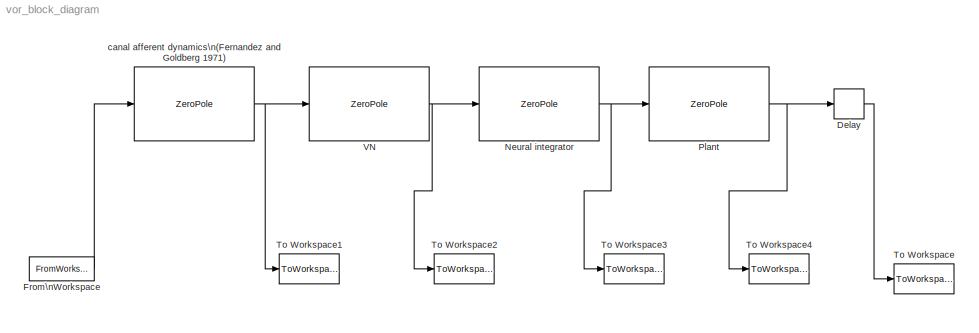
MODEL vor_block_diagram
KIND model
BLOCK [TransportDelay] Delay
  DelayTime = delay
  Ports = [1, 1]
  SID = 1
BLOCK [FromWorkspace] From\nWorkspace
  SID = 2
  SampleTime = Ts
  VariableName = [t input]
BLOCK [ZeroPole] Neural integrator
  Gain = [Te1]
  Poles = [0]
  SID = 3
  Zeros = [-1/Te1]
BLOCK [ZeroPole] Plant
  Gain = [1/(Te1*Te2)]
  Poles = [-1/Te1 -1/Te2]
  SID = 4
  Zeros = [0]
BLOCK [ToWorkspace] To Workspace
  MaxDataPoints = inf
  Ports = [1]
  SID = 5
  SampleTime = Ts
  VariableName = simout
BLOCK [ToWorkspace] To Workspace1
  MaxDataPoints = inf
  Ports = [1]
  SID = 8
  SampleTime = Ts
  VariableName = step1
BLOCK [ToWorkspace] To Workspace2
  MaxDataPoints = inf
  Ports = [1]
  SID = 9
  SampleTime = Ts
  VariableName = step2
BLOCK [ToWorkspace] To Workspace3
  MaxDataPoints = inf
  Ports = [1]
  SID = 10
  SampleTime = Ts
  VariableName = step3
BLOCK [ToWorkspace] To Workspace4
  MaxDataPoints = inf
  Ports = [1]
  SID = 11
  SampleTime = Ts
  VariableName = step4
BLOCK [ZeroPole] VN
  Gain = [-g]
  Poles = [-1/Tvor ]
  SID = 6
  Zeros = [-1/Tc]
BLOCK [ZeroPole] canal afferent dynamics\n(Fernandez and Goldberg 1971)
  Gain = [T/(Tc*T2)]
  Poles = [-1/Tc -1/T2]
  SID = 7
  Zeros = [ 0 -1/T]
LINE Delay:1 -> To Workspace:1
LINE From\nWorkspace:1 -> canal afferent dynamics\n(Fernandez and Goldberg 1971):1
NET Neural integrator:1 -> Plant:1, To Workspace3:1
NET Plant:1 -> Delay:1, To Workspace4:1
NET VN:1 -> Neural integrator:1, To Workspace2:1
NET canal afferent dynamics\n(Fernandez and Goldberg 1971):1 -> To Workspace1:1, VN:1
note: NET lines group one-source signal fan-out (src -> all destinations, sorted); 1:1 wires keep LINE
